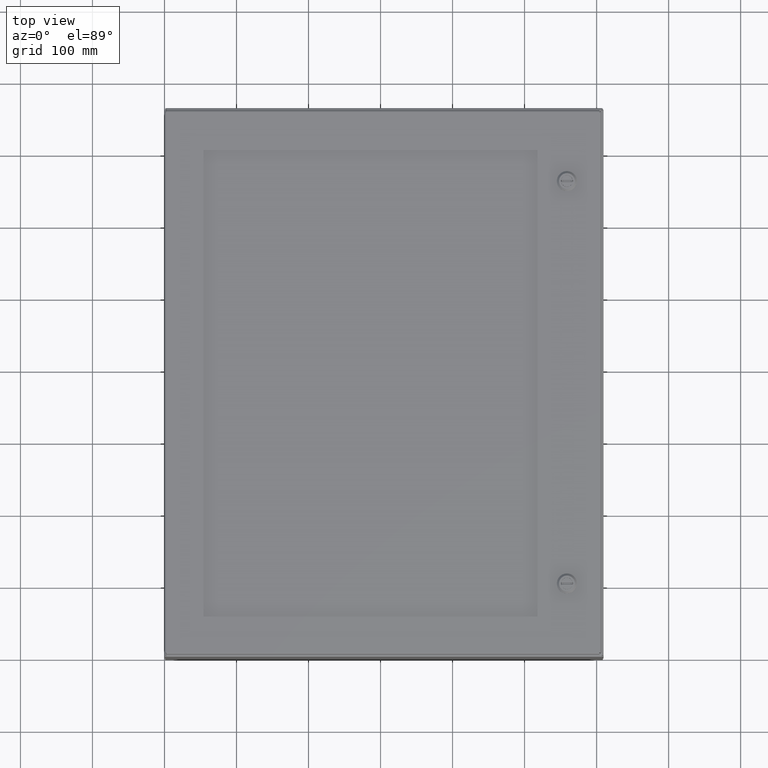
[diagram: clean part render]
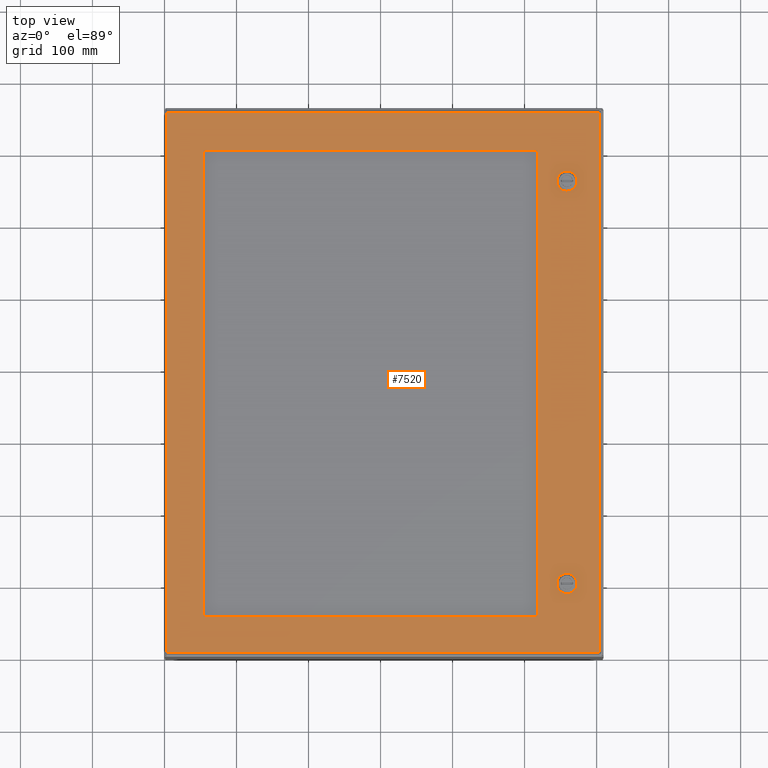
[diagram: same view with one face highlighted and labeled with its STEP entity id]
A machine part, top view. The second image highlights one B-rep face of the part: STEP entity #7520.
In plain terms, the highlighted planar face has unit normal (-0, 0, -1).
Its self-contained STEP definition (entity closure, byte-faithful):
#5447=CARTESIAN_POINT('',(2.087624081420710,4.274999999999997,-4.437467E-015));
#5448=VERTEX_POINT('',#5447);
#5455=CARTESIAN_POINT('',(2.275000000000002,4.087624081420710,-4.437467E-015));
#5456=VERTEX_POINT('',#5455);
#5457=CARTESIAN_POINT('',(1.875000000000005,3.874999999999995,0.0));
#5458=DIRECTION('',(0.0,0.0,1.0));
#5459=DIRECTION('',(-0.469368833158288,-0.883002207505523,0.0));
#5460=AXIS2_PLACEMENT_3D('',#5457,#5458,#5459);
#5461=CIRCLE('',#5460,0.453000000000000);
#5462=EDGE_CURVE('',#5456,#5448,#5461,.T.);
#5487=CARTESIAN_POINT('',(2.275000000000002,3.662375918579280,-4.437467E-015));
#5488=VERTEX_POINT('',#5487);
#5489=CARTESIAN_POINT('',(2.275000000000001,3.662375918579280,0.0));
#5490=DIRECTION('',(0.0,1.0,0.0));
#5491=VECTOR('',#5490,0.425248162841430);
#5492=LINE('',#5489,#5491);
#5493=EDGE_CURVE('',#5488,#5456,#5492,.T.);
#5519=CARTESIAN_POINT('',(2.087624081420720,3.474999999999999,-4.437467E-015));
#5520=VERTEX_POINT('',#5519);
#5521=CARTESIAN_POINT('',(1.875000000000005,3.874999999999995,0.0));
#5522=DIRECTION('',(0.0,0.0,1.0));
#5523=DIRECTION('',(-0.883002207505511,0.469368833158312,0.0));
#5524=AXIS2_PLACEMENT_3D('',#5521,#5522,#5523);
#5525=CIRCLE('',#5524,0.453000000000000);
#5526=EDGE_CURVE('',#5520,#5488,#5525,.T.);
#5551=CARTESIAN_POINT('',(1.662375918579290,3.474999999999999,-4.437467E-015));
#5552=VERTEX_POINT('',#5551);
#5553=CARTESIAN_POINT('',(1.662375918579290,3.474999999999999,0.0));
#5554=DIRECTION('',(1.0,0.0,0.0));
#5555=VECTOR('',#5554,0.425248162841430);
#5556=LINE('',#5553,#5555);
#5557=EDGE_CURVE('',#5552,#5520,#5556,.T.);
#5583=CARTESIAN_POINT('',(1.475000000000002,3.662375918579291,-4.437467E-015));
#5584=VERTEX_POINT('',#5583);
#5585=CARTESIAN_POINT('',(1.875000000000005,3.874999999999995,0.0));
#5586=DIRECTION('',(0.0,0.0,1.0));
#5587=DIRECTION('',(0.469368833158311,0.883002207505511,0.0));
#5588=AXIS2_PLACEMENT_3D('',#5585,#5586,#5587);
#5589=CIRCLE('',#5588,0.453000000000000);
#5590=EDGE_CURVE('',#5584,#5552,#5589,.T.);
#5615=CARTESIAN_POINT('',(1.475000000000002,4.087624081420699,-4.437467E-015));
#5616=VERTEX_POINT('',#5615);
#5617=CARTESIAN_POINT('',(1.475000000000002,4.087624081420699,0.0));
#5618=DIRECTION('',(0.0,-1.0,0.0));
#5619=VECTOR('',#5618,0.425248162841408);
#5620=LINE('',#5617,#5619);
#5621=EDGE_CURVE('',#5616,#5584,#5620,.T.);
#5647=CARTESIAN_POINT('',(1.662375918579301,4.274999999999997,-4.437467E-015));
#5648=VERTEX_POINT('',#5647);
#5649=CARTESIAN_POINT('',(1.875000000000005,3.874999999999995,0.0));
#5650=DIRECTION('',(0.0,0.0,1.0));
#5651=DIRECTION('',(0.883002207505524,-0.469368833158286,0.0));
#5652=AXIS2_PLACEMENT_3D('',#5649,#5650,#5651);
#5653=CIRCLE('',#5652,0.453000000000000);
#5654=EDGE_CURVE('',#5648,#5616,#5653,.T.);
#5677=CARTESIAN_POINT('',(2.087624081420709,4.274999999999997,0.0));
#5678=DIRECTION('',(-1.0,0.0,0.0));
#5679=VECTOR('',#5678,0.425248162841409);
#5680=LINE('',#5677,#5679);
#5681=EDGE_CURVE('',#5448,#5648,#5680,.T.);
#5702=CARTESIAN_POINT('',(21.750000000000000,27.562500000000011,0.0));
#5703=VERTEX_POINT('',#5702);
#5710=CARTESIAN_POINT('',(21.749999999999993,2.062500000000010,0.0));
#5711=VERTEX_POINT('',#5710);
#5712=CARTESIAN_POINT('',(21.749999999999996,2.062500000000007,0.0));
#5713=DIRECTION('',(0.0,1.0,0.0));
#5714=VECTOR('',#5713,25.500000000000000);
#5715=LINE('',#5712,#5714);
#5716=EDGE_CURVE('',#5711,#5703,#5715,.T.);
#5741=CARTESIAN_POINT('',(3.500000000000003,2.062500000000013,0.0));
#5742=VERTEX_POINT('',#5741);
#5743=CARTESIAN_POINT('',(3.500000000000005,2.062500000000014,0.0));
#5744=DIRECTION('',(1.0,0.0,0.0));
#5745=VECTOR('',#5744,18.249999999999993);
#5746=LINE('',#5743,#5745);
#5747=EDGE_CURVE('',#5742,#5711,#5746,.T.);
#5772=CARTESIAN_POINT('',(3.499999999999998,27.562500000000011,0.0));
#5773=VERTEX_POINT('',#5772);
#5774=CARTESIAN_POINT('',(3.499999999999998,27.562500000000007,0.0));
#5775=DIRECTION('',(0.0,-1.0,0.0));
#5776=VECTOR('',#5775,25.499999999999993);
#5777=LINE('',#5774,#5776);
#5778=EDGE_CURVE('',#5773,#5742,#5777,.T.);
#5801=CARTESIAN_POINT('',(21.750000000000000,27.562500000000011,0.0));
#5802=DIRECTION('',(-1.0,0.0,0.0));
#5803=VECTOR('',#5802,18.250000000000000);
#5804=LINE('',#5801,#5803);
#5805=EDGE_CURVE('',#5703,#5773,#5804,.T.);
#5827=CARTESIAN_POINT('',(2.087624081420703,26.274999999999995,0.0));
#5828=VERTEX_POINT('',#5827);
#5835=CARTESIAN_POINT('',(2.274999999999995,26.087624081420710,0.0));
#5836=VERTEX_POINT('',#5835);
#5837=CARTESIAN_POINT('',(1.874999999999998,25.874999999999993,0.0));
#5838=DIRECTION('',(0.0,0.0,1.0));
#5839=DIRECTION('',(-0.469368833158288,-0.883002207505523,0.0));
#5840=AXIS2_PLACEMENT_3D('',#5837,#5838,#5839);
#5841=CIRCLE('',#5840,0.453000000000000);
#5842=EDGE_CURVE('',#5836,#5828,#5841,.T.);
#5867=CARTESIAN_POINT('',(2.274999999999995,25.662375918579279,0.0));
#5868=VERTEX_POINT('',#5867);
#5869=CARTESIAN_POINT('',(2.274999999999995,25.662375918579279,0.0));
#5870=DIRECTION('',(0.0,1.0,0.0));
#5871=VECTOR('',#5870,0.425248162841434);
#5872=LINE('',#5869,#5871);
#5873=EDGE_CURVE('',#5868,#5836,#5872,.T.);
#5899=CARTESIAN_POINT('',(2.087624081420713,25.474999999999998,0.0));
#5900=VERTEX_POINT('',#5899);
#5901=CARTESIAN_POINT('',(1.874999999999998,25.874999999999993,0.0));
#5902=DIRECTION('',(0.0,0.0,1.0));
#5903=DIRECTION('',(-0.883002207505511,0.469368833158312,0.0));
#5904=AXIS2_PLACEMENT_3D('',#5901,#5902,#5903);
#5905=CIRCLE('',#5904,0.453000000000000);
#5906=EDGE_CURVE('',#5900,#5868,#5905,.T.);
#5931=CARTESIAN_POINT('',(1.662375918579284,25.474999999999998,0.0));
#5932=VERTEX_POINT('',#5931);
#5933=CARTESIAN_POINT('',(1.662375918579284,25.474999999999998,0.0));
#5934=DIRECTION('',(1.0,0.0,0.0));
#5935=VECTOR('',#5934,0.425248162841430);
#5936=LINE('',#5933,#5935);
#5937=EDGE_CURVE('',#5932,#5900,#5936,.T.);
#5963=CARTESIAN_POINT('',(1.474999999999995,25.662375918579290,0.0));
#5964=VERTEX_POINT('',#5963);
#5965=CARTESIAN_POINT('',(1.874999999999998,25.874999999999993,0.0));
#5966=DIRECTION('',(0.0,0.0,1.0));
#5967=DIRECTION('',(0.469368833158311,0.883002207505511,0.0));
#5968=AXIS2_PLACEMENT_3D('',#5965,#5966,#5967);
#5969=CIRCLE('',#5968,0.453000000000000);
#5970=EDGE_CURVE('',#5964,#5932,#5969,.T.);
#5995=CARTESIAN_POINT('',(1.474999999999995,26.087624081420699,0.0));
#5996=VERTEX_POINT('',#5995);
#5997=CARTESIAN_POINT('',(1.474999999999994,26.087624081420699,0.0));
#5998=DIRECTION('',(0.0,-1.0,0.0));
#5999=VECTOR('',#5998,0.425248162841406);
#6000=LINE('',#5997,#5999);
#6001=EDGE_CURVE('',#5996,#5964,#6000,.T.);
#6027=CARTESIAN_POINT('',(1.662375918579294,26.274999999999995,0.0));
#6028=VERTEX_POINT('',#6027);
#6029=CARTESIAN_POINT('',(1.874999999999998,25.874999999999993,0.0));
#6030=DIRECTION('',(0.0,0.0,1.0));
#6031=DIRECTION('',(0.883002207505524,-0.469368833158286,0.0));
#6032=AXIS2_PLACEMENT_3D('',#6029,#6030,#6031);
#6033=CIRCLE('',#6032,0.453000000000000);
#6034=EDGE_CURVE('',#6028,#5996,#6033,.T.);
#6057=CARTESIAN_POINT('',(2.087624081420702,26.274999999999995,0.0));
#6058=DIRECTION('',(-1.0,0.0,0.0));
#6059=VECTOR('',#6058,0.425248162841408);
#6060=LINE('',#6057,#6059);
#6061=EDGE_CURVE('',#5828,#6028,#6060,.T.);
#6512=CARTESIAN_POINT('',(23.769749999999998,0.105250000000001,-2.185478E-017));
#6513=VERTEX_POINT('',#6512);
#6524=CARTESIAN_POINT('',(23.769749999999988,29.644749999999998,-2.185478E-017));
#6525=VERTEX_POINT('',#6524);
#6526=CARTESIAN_POINT('',(23.769749999999995,29.644749999999998,0.0));
#6527=DIRECTION('',(0.0,-1.0,0.0));
#6528=VECTOR('',#6527,29.539499999999997);
#6529=LINE('',#6526,#6528);
#6530=EDGE_CURVE('',#6525,#6513,#6529,.T.);
#6682=CARTESIAN_POINT('',(0.105250000000006,0.105250000000007,-3.278218E-017));
#6683=VERTEX_POINT('',#6682);
#6694=CARTESIAN_POINT('',(23.769749999999998,0.105250000000001,0.0));
#6695=DIRECTION('',(-1.0,0.0,0.0));
#6696=VECTOR('',#6695,23.664499999999993);
#6697=LINE('',#6694,#6696);
#6698=EDGE_CURVE('',#6513,#6683,#6697,.T.);
#6959=CARTESIAN_POINT('',(0.105249999999993,29.644749999999998,-2.185478E-017));
#6960=VERTEX_POINT('',#6959);
#6971=CARTESIAN_POINT('',(0.105250000000005,0.105250000000007,0.0));
#6972=DIRECTION('',(0.0,1.0,0.0));
#6973=VECTOR('',#6972,29.539499999999990);
#6974=LINE('',#6971,#6973);
#6975=EDGE_CURVE('',#6683,#6960,#6974,.T.);
#7240=CARTESIAN_POINT('',(0.105249999999993,29.644749999999998,0.0));
#7241=DIRECTION('',(1.0,0.0,0.0));
#7242=VECTOR('',#7241,23.664499999999997);
#7243=LINE('',#7240,#7242);
#7244=EDGE_CURVE('',#6960,#6525,#7243,.T.);
#7483=CARTESIAN_POINT('',(11.937499999999998,14.875000000000004,0.0));
#7484=DIRECTION('',(0.0,0.0,1.0));
#7485=DIRECTION('',(1.0,0.0,0.0));
#7486=AXIS2_PLACEMENT_3D('',#7483,#7484,#7485);
#7487=PLANE('',#7486);
#7488=ORIENTED_EDGE('',*,*,#6530,.T.);
#7489=ORIENTED_EDGE('',*,*,#6698,.T.);
#7490=ORIENTED_EDGE('',*,*,#6975,.T.);
#7491=ORIENTED_EDGE('',*,*,#7244,.T.);
#7492=EDGE_LOOP('',(#7488,#7489,#7490,#7491));
#7493=FACE_OUTER_BOUND('',#7492,.T.);
#7494=ORIENTED_EDGE('',*,*,#5462,.T.);
#7495=ORIENTED_EDGE('',*,*,#5681,.T.);
#7496=ORIENTED_EDGE('',*,*,#5654,.T.);
#7497=ORIENTED_EDGE('',*,*,#5621,.T.);
#7498=ORIENTED_EDGE('',*,*,#5590,.T.);
#7499=ORIENTED_EDGE('',*,*,#5557,.T.);
#7500=ORIENTED_EDGE('',*,*,#5526,.T.);
#7501=ORIENTED_EDGE('',*,*,#5493,.T.);
#7502=EDGE_LOOP('',(#7494,#7495,#7496,#7497,#7498,#7499,#7500,#7501));
#7503=FACE_BOUND('',#7502,.T.);
#7504=ORIENTED_EDGE('',*,*,#5716,.T.);
#7505=ORIENTED_EDGE('',*,*,#5805,.T.);
#7506=ORIENTED_EDGE('',*,*,#5778,.T.);
#7507=ORIENTED_EDGE('',*,*,#5747,.T.);
#7508=EDGE_LOOP('',(#7504,#7505,#7506,#7507));
#7509=FACE_BOUND('',#7508,.T.);
#7510=ORIENTED_EDGE('',*,*,#5842,.T.);
#7511=ORIENTED_EDGE('',*,*,#6061,.T.);
#7512=ORIENTED_EDGE('',*,*,#6034,.T.);
#7513=ORIENTED_EDGE('',*,*,#6001,.T.);
#7514=ORIENTED_EDGE('',*,*,#5970,.T.);
#7515=ORIENTED_EDGE('',*,*,#5937,.T.);
#7516=ORIENTED_EDGE('',*,*,#5906,.T.);
#7517=ORIENTED_EDGE('',*,*,#5873,.T.);
#7518=EDGE_LOOP('',(#7510,#7511,#7512,#7513,#7514,#7515,#7516,#7517));
#7519=FACE_BOUND('',#7518,.T.);
#7520=ADVANCED_FACE('',(#7493,#7503,#7509,#7519),#7487,.F.);